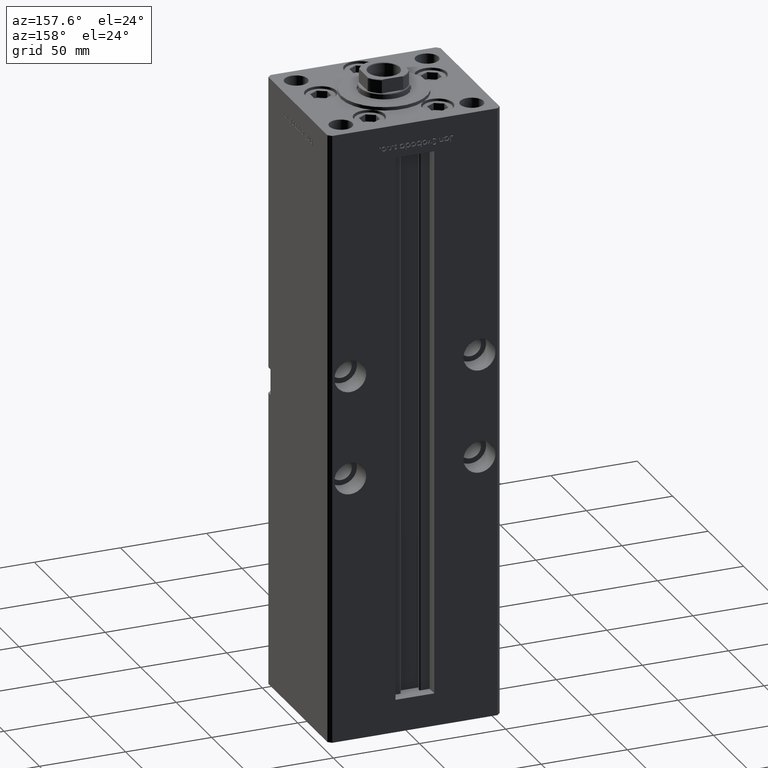
[diagram: clean part render]
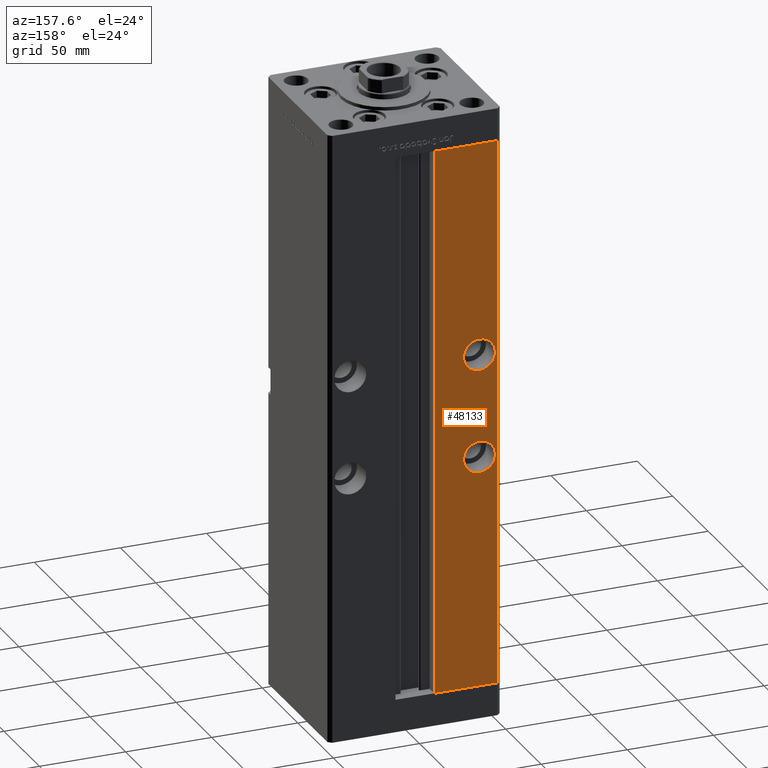
[diagram: same view with one face highlighted and labeled with its STEP entity id]
A machine part, auxiliary view. The second image highlights one B-rep face of the part: STEP entity #48133.
In plain terms, the highlighted planar face has unit normal (0, -1, 0).
Its self-contained STEP definition (entity closure, byte-faithful):
#259 = DIRECTION ( 'NONE',  ( 0.000000000000000000, -1.000000000000000000, 0.000000000000000000 ) ) ;
#2226 = CARTESIAN_POINT ( 'NONE',  ( -37.50000000000000000, 43.50000000000000000, 125.2500000000000000 ) ) ;
#3081 = EDGE_LOOP ( 'NONE', ( #18923, #36143 ) ) ;
#3492 = EDGE_CURVE ( 'NONE', #6468, #22766, #30899, .T. ) ;
#6468 = VERTEX_POINT ( 'NONE', #51373 ) ;
#6508 = ORIENTED_EDGE ( 'NONE', *, *, #51368, .T. ) ;
#6742 = ORIENTED_EDGE ( 'NONE', *, *, #45758, .F. ) ;
#6800 = DIRECTION ( 'NONE',  ( 1.000000000000000000, 0.000000000000000000, 0.000000000000000000 ) ) ;
#7546 = VERTEX_POINT ( 'NONE', #35197 ) ;
#7658 = LINE ( 'NONE', #31829, #31654 ) ;
#7753 = AXIS2_PLACEMENT_3D ( 'NONE', #31421, #10220, #9701 ) ;
#8467 = DIRECTION ( 'NONE',  ( 0.000000000000000000, 0.000000000000000000, 1.000000000000000000 ) ) ;
#8604 = FACE_BOUND ( 'NONE', #50533, .T. ) ;
#8910 = EDGE_CURVE ( 'NONE', #7546, #29653, #39850, .T. ) ;
#9701 = DIRECTION ( 'NONE',  ( 0.000000000000000000, 0.000000000000000000, -1.000000000000000000 ) ) ;
#10220 = DIRECTION ( 'NONE',  ( 0.000000000000000000, 1.000000000000000000, -0.000000000000000000 ) ) ;
#10741 = CARTESIAN_POINT ( 'NONE',  ( -37.50000000000000000, 43.50000000000000000, 143.7500000000000284 ) ) ;
#12495 = VECTOR ( 'NONE', #52649, 1000.000000000000000 ) ;
#12569 = DIRECTION ( 'NONE',  ( 0.000000000000000000, 1.000000000000000000, -0.000000000000000000 ) ) ;
#12782 = CARTESIAN_POINT ( 'NONE',  ( -48.00000000000000711, 43.50000000000000000, 318.5000000000000000 ) ) ;
#13066 = ORIENTED_EDGE ( 'NONE', *, *, #22695, .F. ) ;
#13334 = ORIENTED_EDGE ( 'NONE', *, *, #52019, .F. ) ;
#13344 = VERTEX_POINT ( 'NONE', #10741 ) ;
#13930 = EDGE_LOOP ( 'NONE', ( #26106, #13066, #6508, #6742 ) ) ;
#14751 = VECTOR ( 'NONE', #6800, 1000.000000000000000 ) ;
#15233 = VERTEX_POINT ( 'NONE', #2226 ) ;
#16327 = CARTESIAN_POINT ( 'NONE',  ( -37.50000000000000000, 43.50000000000000000, 194.5000000000000000 ) ) ;
#16364 = LINE ( 'NONE', #23627, #12495 ) ;
#16391 = FACE_OUTER_BOUND ( 'NONE', #13930, .T. ) ;
#18923 = ORIENTED_EDGE ( 'NONE', *, *, #3492, .F. ) ;
#19199 = DIRECTION ( 'NONE',  ( -1.000000000000000000, 0.000000000000000000, 0.000000000000000000 ) ) ;
#20144 = ORIENTED_EDGE ( 'NONE', *, *, #42455, .F. ) ;
#20316 = VECTOR ( 'NONE', #24870, 1000.000000000000000 ) ;
#21001 = CIRCLE ( 'NONE', #36460, 9.250000000000008882 ) ;
#21113 = LINE ( 'NONE', #12782, #20316 ) ;
#22695 = EDGE_CURVE ( 'NONE', #41168, #29653, #16364, .T. ) ;
#22766 = VERTEX_POINT ( 'NONE', #32241 ) ;
#23627 = CARTESIAN_POINT ( 'NONE',  ( -11.24999999999999645, 43.50000000000000000, 0.000000000000000000 ) ) ;
#24870 = DIRECTION ( 'NONE',  ( -0.000000000000000000, -0.000000000000000000, -1.000000000000000000 ) ) ;
#24986 = PLANE ( 'NONE',  #46995 ) ;
#26106 = ORIENTED_EDGE ( 'NONE', *, *, #8910, .T. ) ;
#26507 = AXIS2_PLACEMENT_3D ( 'NONE', #33600, #41922, #37876 ) ;
#28402 = CARTESIAN_POINT ( 'NONE',  ( -11.24999999999999645, 43.50000000000000000, 0.000000000000000000 ) ) ;
#29653 = VERTEX_POINT ( 'NONE', #30449 ) ;
#29812 = FACE_BOUND ( 'NONE', #3081, .T. ) ;
#30449 = CARTESIAN_POINT ( 'NONE',  ( -11.24999999999999645, 43.50000000000000000, 318.5000000000000000 ) ) ;
#30899 = CIRCLE ( 'NONE', #7753, 9.250000000000008882 ) ;
#31421 = CARTESIAN_POINT ( 'NONE',  ( -37.50000000000000000, 43.50000000000000000, 194.5000000000000000 ) ) ;
#31654 = VECTOR ( 'NONE', #19199, 1000.000000000000000 ) ;
#31829 = CARTESIAN_POINT ( 'NONE',  ( -11.24999999999999645, 43.50000000000000000, 0.000000000000000000 ) ) ;
#32241 = CARTESIAN_POINT ( 'NONE',  ( -37.50000000000000000, 43.50000000000000000, 185.2500000000000000 ) ) ;
#32251 = AXIS2_PLACEMENT_3D ( 'NONE', #50096, #46058, #8467 ) ;
#33600 = CARTESIAN_POINT ( 'NONE',  ( -37.50000000000000000, 43.50000000000000000, 134.5000000000000000 ) ) ;
#35197 = CARTESIAN_POINT ( 'NONE',  ( -48.00000000000000711, 43.50000000000000000, 318.5000000000000000 ) ) ;
#35692 = CIRCLE ( 'NONE', #32251, 9.250000000000008882 ) ;
#36143 = ORIENTED_EDGE ( 'NONE', *, *, #39547, .F. ) ;
#36460 = AXIS2_PLACEMENT_3D ( 'NONE', #16327, #12569, #37013 ) ;
#37013 = DIRECTION ( 'NONE',  ( 0.000000000000000000, 0.000000000000000000, -1.000000000000000000 ) ) ;
#37876 = DIRECTION ( 'NONE',  ( 0.000000000000000000, 0.000000000000000000, 1.000000000000000000 ) ) ;
#39547 = EDGE_CURVE ( 'NONE', #22766, #6468, #21001, .T. ) ;
#39850 = LINE ( 'NONE', #51940, #14751 ) ;
#41115 = DIRECTION ( 'NONE',  ( 0.000000000000000000, -0.000000000000000000, -1.000000000000000000 ) ) ;
#41168 = VERTEX_POINT ( 'NONE', #28402 ) ;
#41379 = CARTESIAN_POINT ( 'NONE',  ( -11.24999999999999645, 43.50000000000000000, 318.5000000000000000 ) ) ;
#41922 = DIRECTION ( 'NONE',  ( 0.000000000000000000, 1.000000000000000000, 0.000000000000000000 ) ) ;
#42455 = EDGE_CURVE ( 'NONE', #15233, #13344, #35692, .T. ) ;
#44846 = VERTEX_POINT ( 'NONE', #46916 ) ;
#45758 = EDGE_CURVE ( 'NONE', #7546, #44846, #21113, .T. ) ;
#46058 = DIRECTION ( 'NONE',  ( 0.000000000000000000, 1.000000000000000000, 0.000000000000000000 ) ) ;
#46916 = CARTESIAN_POINT ( 'NONE',  ( -48.00000000000000711, 43.50000000000000000, 0.000000000000000000 ) ) ;
#46995 = AXIS2_PLACEMENT_3D ( 'NONE', #41379, #259, #41115 ) ;
#48133 = ADVANCED_FACE ( 'NONE', ( #29812, #8604, #16391 ), #24986, .F. ) ;
#49686 = CIRCLE ( 'NONE', #26507, 9.250000000000008882 ) ;
#50096 = CARTESIAN_POINT ( 'NONE',  ( -37.50000000000000000, 43.50000000000000000, 134.5000000000000000 ) ) ;
#50533 = EDGE_LOOP ( 'NONE', ( #13334, #20144 ) ) ;
#51368 = EDGE_CURVE ( 'NONE', #41168, #44846, #7658, .T. ) ;
#51373 = CARTESIAN_POINT ( 'NONE',  ( -37.50000000000000000, 43.50000000000000000, 203.7500000000000284 ) ) ;
#51940 = CARTESIAN_POINT ( 'NONE',  ( -11.24999999999999645, 43.50000000000000000, 318.5000000000000000 ) ) ;
#52019 = EDGE_CURVE ( 'NONE', #13344, #15233, #49686, .T. ) ;
#52649 = DIRECTION ( 'NONE',  ( -0.000000000000000000, -0.000000000000000000, 1.000000000000000000 ) ) ;